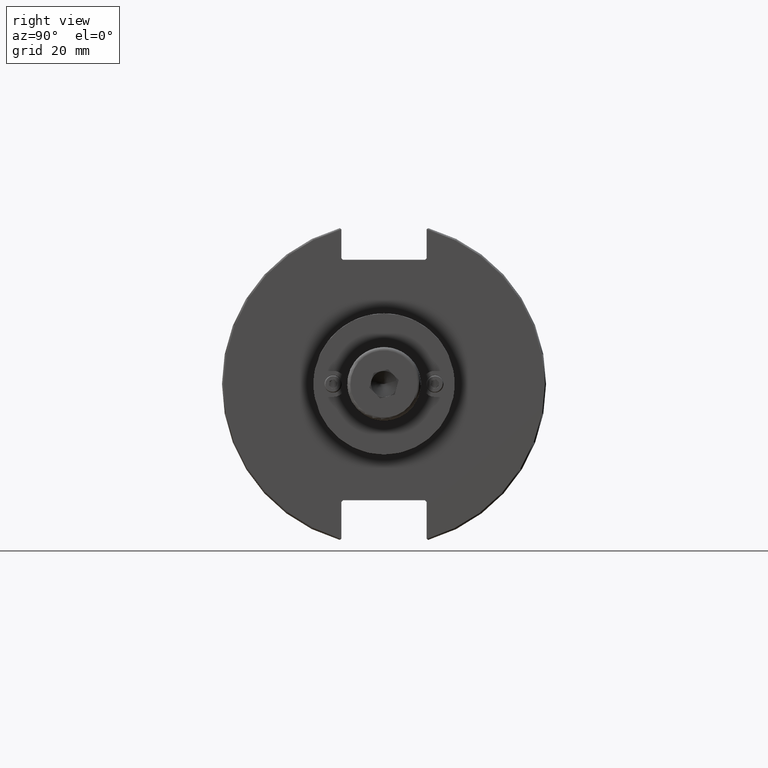
[diagram: clean part render]
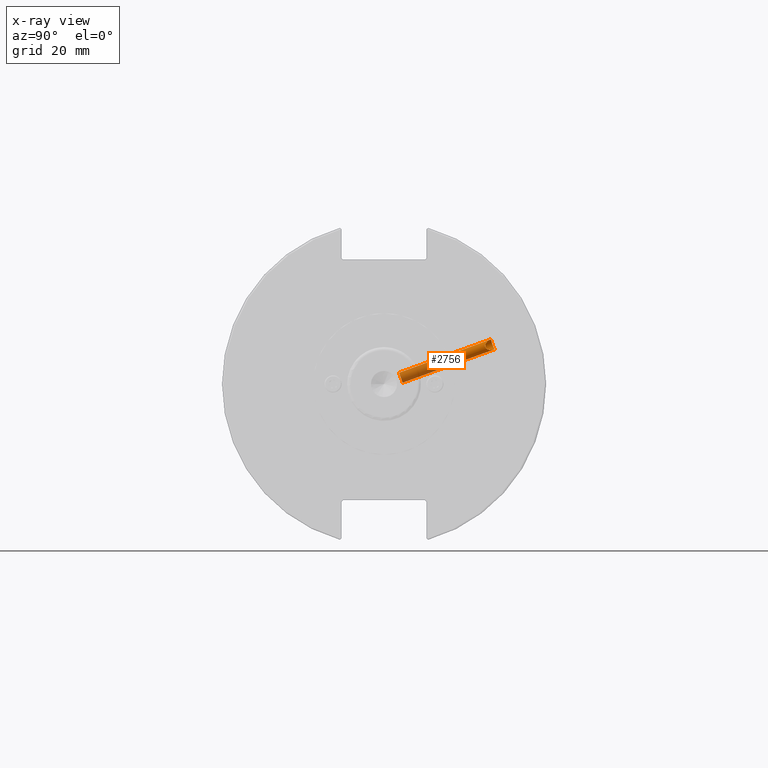
[diagram: x-ray — body ghosted, one internal face saturated and labeled with its STEP entity id]
A machine part, right view, then the same camera in x-ray: the body is ghosted and one INTERNAL B-rep face — a face not visible from any outside direction — is saturated and labeled: STEP entity #2756.
In plain terms, the highlighted cylindrical surface (bore or boss wall) has radius 1.621 mm, axis along (-0, 0.9397, 0.342).
Its self-contained STEP definition (entity closure, byte-faithful):
#491=B_SPLINE_CURVE_WITH_KNOTS('',3,(#4519,#4520,#4521,#4522,#4523,#4524,
#4525,#4526,#4527,#4528,#4529,#4530,#4531,#4532,#4533,#4534,#4535,#4536,
#4537,#4538,#4539,#4540,#4541,#4542,#4543,#4544,#4545,#4546,#4547,#4548,
#4549,#4550),.UNSPECIFIED.,.F.,.F.,(4,2,2,2,2,2,2,2,2,2,2,2,2,2,2,4),(0.,
0.0901464867254987,0.192567236071379,0.257828346844419,0.290458902230939,
0.32308945761746,0.35572001300398,0.3883505683905,0.45361167916354,0.556032428509421,
0.646178915234919,0.678611098115673,0.711043280996427,0.775907646757935,
0.842857882203167,0.896346031951307),.UNSPECIFIED.);
#492=B_SPLINE_CURVE_WITH_KNOTS('',3,(#4551,#4552,#4553,#4554,#4555,#4556,
#4557,#4558,#4559,#4560,#4561,#4562),.UNSPECIFIED.,.F.,.F.,(4,2,2,2,2,4),
(0.896346031951307,0.949834181699448,1.01678441714468,1.08164878290619,
1.11408096578694,1.14651314866769),.UNSPECIFIED.);
#531=CYLINDRICAL_SURFACE('',#3092,1.621);
#635=CIRCLE('',#3093,1.621);
#768=FACE_OUTER_BOUND('',#918,.T.);
#918=EDGE_LOOP('',(#2118,#2119,#2120,#2121,#2122));
#1083=LINE('',#4564,#1251);
#1251=VECTOR('',#3537,1.621);
#1443=VERTEX_POINT('',#4517);
#1444=VERTEX_POINT('',#4518);
#1445=VERTEX_POINT('',#4563);
#1700=EDGE_CURVE('',#1443,#1444,#491,.T.);
#1701=EDGE_CURVE('',#1444,#1443,#492,.T.);
#1702=EDGE_CURVE('',#1444,#1445,#1083,.T.);
#1703=EDGE_CURVE('',#1445,#1445,#635,.T.);
#2118=ORIENTED_EDGE('',*,*,#1700,.F.);
#2119=ORIENTED_EDGE('',*,*,#1701,.F.);
#2120=ORIENTED_EDGE('',*,*,#1702,.T.);
#2121=ORIENTED_EDGE('',*,*,#1703,.F.);
#2122=ORIENTED_EDGE('',*,*,#1702,.F.);
#2756=ADVANCED_FACE('',(#768),#531,.F.);
#3092=AXIS2_PLACEMENT_3D('',#4516,#3535,#3536);
#3093=AXIS2_PLACEMENT_3D('',#4565,#3538,#3539);
#3535=DIRECTION('center_axis',(-1.32999192572579E-16,0.939692620785909,
0.342020143325669));
#3536=DIRECTION('ref_axis',(1.,1.41534784492982E-16,0.));
#3537=DIRECTION('',(1.32999192572579E-16,-0.939692620785908,-0.342020143325669));
#3538=DIRECTION('center_axis',(-1.32999192572579E-16,0.939692620785909,
0.342020143325669));
#3539=DIRECTION('ref_axis',(1.,1.41534784492982E-16,0.));
#4516=CARTESIAN_POINT('Origin',(11.1341,23.9090691969663,8.70218951670665));
#4517=CARTESIAN_POINT('',(11.1341,33.313335016979,10.4000301811349));
#4518=CARTESIAN_POINT('',(9.51309999999999,32.9255829555454,11.9839321416811));
#4519=CARTESIAN_POINT('Ctrl Pts',(11.1341,33.313335016979,10.4000301811349));
#4520=CARTESIAN_POINT('Ctrl Pts',(11.3802455962889,33.1513761728118,10.3410819826819));
#4521=CARTESIAN_POINT('Ctrl Pts',(11.6185813616689,32.8827152960876,10.3088388227607));
#4522=CARTESIAN_POINT('Ctrl Pts',(12.0026245261189,32.3683985728797,10.305241826661));
#4523=CARTESIAN_POINT('Ctrl Pts',(12.2151564972204,32.0202637587832,10.3436146141384));
#4524=CARTESIAN_POINT('Ctrl Pts',(12.470544244763,31.5456859836842,10.4918253969895));
#4525=CARTESIAN_POINT('Ctrl Pts',(12.5682510694473,31.3466778285718,10.5797338737154));
#4526=CARTESIAN_POINT('Ctrl Pts',(12.6749644342972,31.0919332722504,10.7712375769509));
#4527=CARTESIAN_POINT('Ctrl Pts',(12.7040411918509,31.0141779263436,10.8449328856202));
#4528=CARTESIAN_POINT('Ctrl Pts',(12.7440975493615,30.8830267246802,11.0119800058459));
#4529=CARTESIAN_POINT('Ctrl Pts',(12.7551,30.8296132843075,11.1053125302729));
#4530=CARTESIAN_POINT('Ctrl Pts',(12.7551,30.7552112361069,11.3097304776653));
#4531=CARTESIAN_POINT('Ctrl Pts',(12.7440975493615,30.7361353150098,11.4155608370271));
#4532=CARTESIAN_POINT('Ctrl Pts',(12.7040411918509,30.7292271451376,11.6278287226398));
#4533=CARTESIAN_POINT('Ctrl Pts',(12.6749644342972,30.7414207644876,11.7342627772656));
#4534=CARTESIAN_POINT('Ctrl Pts',(12.5682510694473,30.8134702086235,12.0447097694044));
#4535=CARTESIAN_POINT('Ctrl Pts',(12.470544244763,30.9094128203569,12.2399715458362));
#4536=CARTESIAN_POINT('Ctrl Pts',(12.2151564972204,31.1776924329606,12.6585603061157));
#4537=CARTESIAN_POINT('Ctrl Pts',(12.0026245261189,31.419713620416,12.9117323117316));
#4538=CARTESIAN_POINT('Ctrl Pts',(11.6185813616689,31.8160151927575,13.2395732699901));
#4539=CARTESIAN_POINT('Ctrl Pts',(11.3802455962889,32.04254686815,13.3875654592698));
#4540=CARTESIAN_POINT('Ctrl Pts',(11.0455437036416,32.2627739715027,13.4677215696688));
#4541=CARTESIAN_POINT('Ctrl Pts',(10.9490410684419,32.3178177707779,13.4799176447313));
#4542=CARTESIAN_POINT('Ctrl Pts',(10.7480580973579,32.4122554138726,13.4760148069679));
#4543=CARTESIAN_POINT('Ctrl Pts',(10.6435548972,32.4515923889905,13.4597199648405));
#4544=CARTESIAN_POINT('Ctrl Pts',(10.3366162582338,32.5470684103066,13.3661104048289));
#4545=CARTESIAN_POINT('Ctrl Pts',(10.1402784858692,32.5832298796224,13.2412869364784));
#4546=CARTESIAN_POINT('Ctrl Pts',(9.83058058671521,32.6561835398779,12.9382662768301));
#4547=CARTESIAN_POINT('Ctrl Pts',(9.68758434388227,32.703450459206,12.7168272168347));
#4548=CARTESIAN_POINT('Ctrl Pts',(9.55039858081597,32.8019228385611,12.3526096727086));
#4549=CARTESIAN_POINT('Ctrl Pts',(9.51309999999999,32.8646028734018,12.1514735404072));
#4550=CARTESIAN_POINT('Ctrl Pts',(9.51309999999999,32.9255829555454,11.9839321416811));
#4551=CARTESIAN_POINT('Ctrl Pts',(9.51309999999999,32.9255829555454,11.9839321416811));
#4552=CARTESIAN_POINT('Ctrl Pts',(9.51309999999999,32.986563037689,11.8163907429551));
#4553=CARTESIAN_POINT('Ctrl Pts',(9.55039858081596,33.0678351590084,11.6220215767248));
#4554=CARTESIAN_POINT('Ctrl Pts',(9.68758434388227,33.2265154645974,11.2797179256148));
#4555=CARTESIAN_POINT('Ctrl Pts',(9.83058058671521,33.3326451877684,11.0797031741237));
#4556=CARTESIAN_POINT('Ctrl Pts',(10.1402784858692,33.4715373672255,10.8006821727563));
#4557=CARTESIAN_POINT('Ctrl Pts',(10.3366162582338,33.524071053455,10.6818177040313));
#4558=CARTESIAN_POINT('Ctrl Pts',(10.6435548972,33.5111032431983,10.5487378172375));
#4559=CARTESIAN_POINT('Ctrl Pts',(10.7480580973579,33.4914434946215,10.5109699237659));
#4560=CARTESIAN_POINT('Ctrl Pts',(10.949041068442,33.4216087586644,10.4472768297156));
#4561=CARTESIAN_POINT('Ctrl Pts',(11.0455437036416,33.3716032761645,10.4212380930809));
#4562=CARTESIAN_POINT('Ctrl Pts',(11.1341,33.313335016979,10.4000301811349));
#4563=CARTESIAN_POINT('',(9.51309999999999,5.11521678124809,1.86178665019327));
#4564=CARTESIAN_POINT('',(9.51309999999999,23.9090691969663,8.70218951670665));
#4565=CARTESIAN_POINT('Origin',(11.1341,5.1152167812481,1.86178665019328));